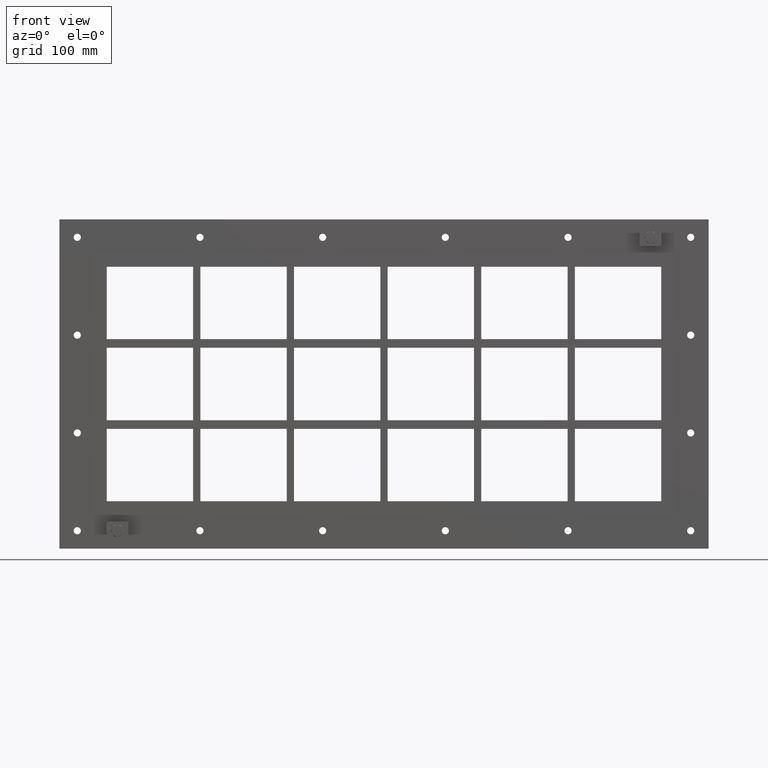
[diagram: clean part render]
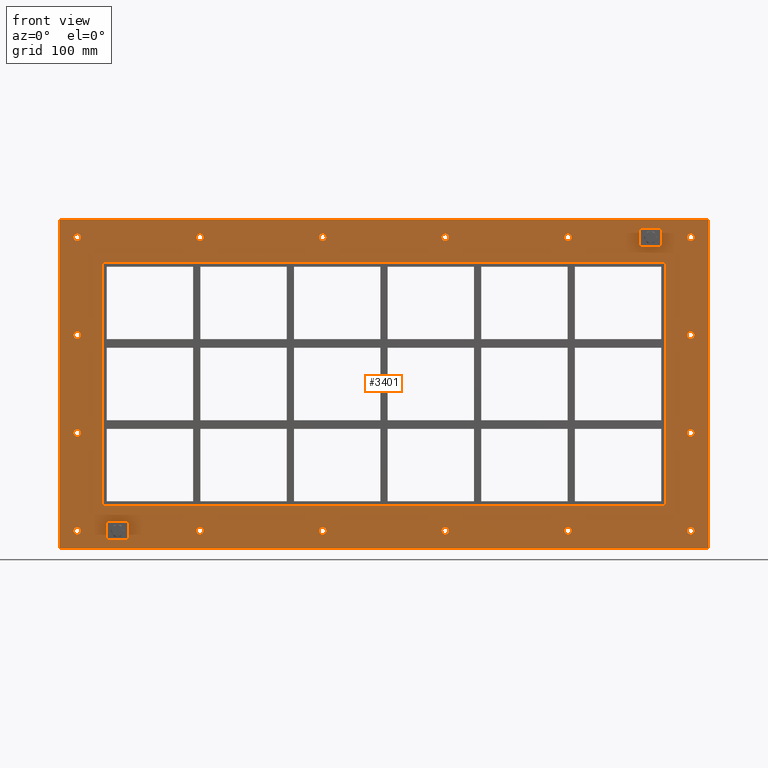
[diagram: same view with one face highlighted and labeled with its STEP entity id]
A machine part, front view. The second image highlights one B-rep face of the part: STEP entity #3401.
In plain terms, the highlighted planar face has unit normal (0, 1, 0).
Its self-contained STEP definition (entity closure, byte-faithful):
#84=CARTESIAN_POINT('',(-422.5,0.0,-204.5));
#85=VERTEX_POINT('',#84);
#86=CARTESIAN_POINT('',(-427.5,0.0,-204.5));
#87=DIRECTION('',(0.0,1.0,0.0));
#88=DIRECTION('',(1.0,0.0,0.0));
#89=AXIS2_PLACEMENT_3D('',#86,#87,#88);
#90=CIRCLE('',#89,5.0);
#91=EDGE_CURVE('',#85,#85,#90,.T.);
#112=CARTESIAN_POINT('',(432.5,0.0,-68.19999999999996));
#113=VERTEX_POINT('',#112);
#114=CARTESIAN_POINT('',(427.5,0.0,-68.19999999999996));
#115=DIRECTION('',(0.0,1.0,0.0));
#116=DIRECTION('',(1.0,0.0,0.0));
#117=AXIS2_PLACEMENT_3D('',#114,#115,#116);
#118=CIRCLE('',#117,5.0);
#119=EDGE_CURVE('',#113,#113,#118,.T.);
#140=CARTESIAN_POINT('',(-422.5,0.0,-68.19999999999996));
#141=VERTEX_POINT('',#140);
#142=CARTESIAN_POINT('',(-427.5,0.0,-68.19999999999996));
#143=DIRECTION('',(0.0,1.0,0.0));
#144=DIRECTION('',(1.0,0.0,0.0));
#145=AXIS2_PLACEMENT_3D('',#142,#143,#144);
#146=CIRCLE('',#145,5.0);
#147=EDGE_CURVE('',#141,#141,#146,.T.);
#168=CARTESIAN_POINT('',(432.5,0.0,68.100000000000051));
#169=VERTEX_POINT('',#168);
#170=CARTESIAN_POINT('',(427.5,0.0,68.100000000000051));
#171=DIRECTION('',(0.0,1.0,0.0));
#172=DIRECTION('',(1.0,0.0,0.0));
#173=AXIS2_PLACEMENT_3D('',#170,#171,#172);
#174=CIRCLE('',#173,5.0);
#175=EDGE_CURVE('',#169,#169,#174,.T.);
#196=CARTESIAN_POINT('',(-422.5,0.0,68.100000000000051));
#197=VERTEX_POINT('',#196);
#198=CARTESIAN_POINT('',(-427.5,0.0,68.100000000000051));
#199=DIRECTION('',(0.0,1.0,0.0));
#200=DIRECTION('',(1.0,0.0,0.0));
#201=AXIS2_PLACEMENT_3D('',#198,#199,#200);
#202=CIRCLE('',#201,5.0);
#203=EDGE_CURVE('',#197,#197,#202,.T.);
#224=CARTESIAN_POINT('',(-251.50000000000006,0.0,204.40000000000009));
#225=VERTEX_POINT('',#224);
#226=CARTESIAN_POINT('',(-256.50000000000006,0.0,204.40000000000009));
#227=DIRECTION('',(0.0,1.0,0.0));
#228=DIRECTION('',(1.0,0.0,0.0));
#229=AXIS2_PLACEMENT_3D('',#226,#227,#228);
#230=CIRCLE('',#229,5.0);
#231=EDGE_CURVE('',#225,#225,#230,.T.);
#252=CARTESIAN_POINT('',(-251.50000000000006,0.0,-204.50000000000003));
#253=VERTEX_POINT('',#252);
#254=CARTESIAN_POINT('',(-256.50000000000006,0.0,-204.50000000000003));
#255=DIRECTION('',(0.0,1.0,0.0));
#256=DIRECTION('',(1.0,0.0,0.0));
#257=AXIS2_PLACEMENT_3D('',#254,#255,#256);
#258=CIRCLE('',#257,5.0);
#259=EDGE_CURVE('',#253,#253,#258,.T.);
#280=CARTESIAN_POINT('',(-80.500000000000043,0.0,204.40000000000009));
#281=VERTEX_POINT('',#280);
#282=CARTESIAN_POINT('',(-85.500000000000043,0.0,204.40000000000009));
#283=DIRECTION('',(0.0,1.0,0.0));
#284=DIRECTION('',(1.0,0.0,0.0));
#285=AXIS2_PLACEMENT_3D('',#282,#283,#284);
#286=CIRCLE('',#285,5.0);
#287=EDGE_CURVE('',#281,#281,#286,.T.);
#308=CARTESIAN_POINT('',(-80.500000000000043,0.0,-204.50000000000003));
#309=VERTEX_POINT('',#308);
#310=CARTESIAN_POINT('',(-85.500000000000043,0.0,-204.50000000000003));
#311=DIRECTION('',(0.0,1.0,0.0));
#312=DIRECTION('',(1.0,0.0,0.0));
#313=AXIS2_PLACEMENT_3D('',#310,#311,#312);
#314=CIRCLE('',#313,5.0);
#315=EDGE_CURVE('',#309,#309,#314,.T.);
#336=CARTESIAN_POINT('',(90.499999999999972,0.0,204.40000000000009));
#337=VERTEX_POINT('',#336);
#338=CARTESIAN_POINT('',(85.499999999999972,0.0,204.40000000000009));
#339=DIRECTION('',(0.0,1.0,0.0));
#340=DIRECTION('',(1.0,0.0,0.0));
#341=AXIS2_PLACEMENT_3D('',#338,#339,#340);
#342=CIRCLE('',#341,5.0);
#343=EDGE_CURVE('',#337,#337,#342,.T.);
#364=CARTESIAN_POINT('',(90.499999999999972,0.0,-204.50000000000003));
#365=VERTEX_POINT('',#364);
#366=CARTESIAN_POINT('',(85.499999999999972,0.0,-204.50000000000003));
#367=DIRECTION('',(0.0,1.0,0.0));
#368=DIRECTION('',(1.0,0.0,0.0));
#369=AXIS2_PLACEMENT_3D('',#366,#367,#368);
#370=CIRCLE('',#369,5.0);
#371=EDGE_CURVE('',#365,#365,#370,.T.);
#392=CARTESIAN_POINT('',(261.5,0.0,204.40000000000009));
#393=VERTEX_POINT('',#392);
#394=CARTESIAN_POINT('',(256.5,0.0,204.40000000000009));
#395=DIRECTION('',(0.0,1.0,0.0));
#396=DIRECTION('',(1.0,0.0,0.0));
#397=AXIS2_PLACEMENT_3D('',#394,#395,#396);
#398=CIRCLE('',#397,5.0);
#399=EDGE_CURVE('',#393,#393,#398,.T.);
#420=CARTESIAN_POINT('',(261.5,0.0,-204.50000000000003));
#421=VERTEX_POINT('',#420);
#422=CARTESIAN_POINT('',(256.5,0.0,-204.50000000000003));
#423=DIRECTION('',(0.0,1.0,0.0));
#424=DIRECTION('',(1.0,0.0,0.0));
#425=AXIS2_PLACEMENT_3D('',#422,#423,#424);
#426=CIRCLE('',#425,5.0);
#427=EDGE_CURVE('',#421,#421,#426,.T.);
#448=CARTESIAN_POINT('',(432.5,0.0,-204.50000000000003));
#449=VERTEX_POINT('',#448);
#450=CARTESIAN_POINT('',(427.5,0.0,-204.50000000000003));
#451=DIRECTION('',(0.0,1.0,0.0));
#452=DIRECTION('',(1.0,0.0,0.0));
#453=AXIS2_PLACEMENT_3D('',#450,#451,#452);
#454=CIRCLE('',#453,5.0);
#455=EDGE_CURVE('',#449,#449,#454,.T.);
#476=CARTESIAN_POINT('',(-422.5,0.0,204.40000000000009));
#477=VERTEX_POINT('',#476);
#478=CARTESIAN_POINT('',(-427.5,0.0,204.40000000000009));
#479=DIRECTION('',(0.0,1.0,0.0));
#480=DIRECTION('',(1.0,0.0,0.0));
#481=AXIS2_PLACEMENT_3D('',#478,#479,#480);
#482=CIRCLE('',#481,5.0);
#483=EDGE_CURVE('',#477,#477,#482,.T.);
#504=CARTESIAN_POINT('',(432.5,0.0,204.40000000000009));
#505=VERTEX_POINT('',#504);
#506=CARTESIAN_POINT('',(427.5,0.0,204.40000000000009));
#507=DIRECTION('',(0.0,1.0,0.0));
#508=DIRECTION('',(1.0,0.0,0.0));
#509=AXIS2_PLACEMENT_3D('',#506,#507,#508);
#510=CIRCLE('',#509,5.0);
#511=EDGE_CURVE('',#505,#505,#510,.T.);
#3244=CARTESIAN_POINT('',(0.0,0.0,0.0));
#3245=DIRECTION('',(0.0,1.0,0.0));
#3246=DIRECTION('',(0.0,0.0,1.0));
#3247=AXIS2_PLACEMENT_3D('',#3244,#3245,#3246);
#3248=PLANE('',#3247);
#3249=CARTESIAN_POINT('',(-452.49999999999994,0.0,229.50000000000003));
#3250=VERTEX_POINT('',#3249);
#3251=CARTESIAN_POINT('',(452.49999999999994,0.0,229.50000000000003));
#3252=VERTEX_POINT('',#3251);
#3253=CARTESIAN_POINT('',(-452.49999999999994,0.0,229.50000000000003));
#3254=DIRECTION('',(1.0,0.0,0.0));
#3255=VECTOR('',#3254,904.99999999999989);
#3256=LINE('',#3253,#3255);
#3257=EDGE_CURVE('',#3250,#3252,#3256,.T.);
#3258=ORIENTED_EDGE('',*,*,#3257,.F.);
#3259=CARTESIAN_POINT('',(-452.49999999999994,0.0,-229.50000000000003));
#3260=VERTEX_POINT('',#3259);
#3261=CARTESIAN_POINT('',(-452.49999999999994,0.0,-229.50000000000003));
#3262=DIRECTION('',(0.0,0.0,1.0));
#3263=VECTOR('',#3262,459.00000000000006);
#3264=LINE('',#3261,#3263);
#3265=EDGE_CURVE('',#3260,#3250,#3264,.T.);
#3266=ORIENTED_EDGE('',*,*,#3265,.F.);
#3267=CARTESIAN_POINT('',(452.49999999999994,0.0,-229.50000000000003));
#3268=VERTEX_POINT('',#3267);
#3269=CARTESIAN_POINT('',(452.49999999999994,0.0,-229.50000000000003));
#3270=DIRECTION('',(-1.0,0.0,0.0));
#3271=VECTOR('',#3270,904.99999999999989);
#3272=LINE('',#3269,#3271);
#3273=EDGE_CURVE('',#3268,#3260,#3272,.T.);
#3274=ORIENTED_EDGE('',*,*,#3273,.F.);
#3275=CARTESIAN_POINT('',(452.49999999999994,0.0,229.50000000000003));
#3276=DIRECTION('',(0.0,0.0,-1.0));
#3277=VECTOR('',#3276,459.00000000000006);
#3278=LINE('',#3275,#3277);
#3279=EDGE_CURVE('',#3252,#3268,#3278,.T.);
#3280=ORIENTED_EDGE('',*,*,#3279,.F.);
#3281=EDGE_LOOP('',(#3258,#3266,#3274,#3280));
#3282=FACE_OUTER_BOUND('',#3281,.T.);
#3283=ORIENTED_EDGE('',*,*,#91,.T.);
#3284=EDGE_LOOP('',(#3283));
#3285=FACE_BOUND('',#3284,.T.);
#3286=ORIENTED_EDGE('',*,*,#119,.T.);
#3287=EDGE_LOOP('',(#3286));
#3288=FACE_BOUND('',#3287,.T.);
#3289=ORIENTED_EDGE('',*,*,#147,.T.);
#3290=EDGE_LOOP('',(#3289));
#3291=FACE_BOUND('',#3290,.T.);
#3292=ORIENTED_EDGE('',*,*,#175,.T.);
#3293=EDGE_LOOP('',(#3292));
#3294=FACE_BOUND('',#3293,.T.);
#3295=ORIENTED_EDGE('',*,*,#203,.T.);
#3296=EDGE_LOOP('',(#3295));
#3297=FACE_BOUND('',#3296,.T.);
#3298=ORIENTED_EDGE('',*,*,#231,.T.);
#3299=EDGE_LOOP('',(#3298));
#3300=FACE_BOUND('',#3299,.T.);
#3301=ORIENTED_EDGE('',*,*,#259,.T.);
#3302=EDGE_LOOP('',(#3301));
#3303=FACE_BOUND('',#3302,.T.);
#3304=ORIENTED_EDGE('',*,*,#287,.T.);
#3305=EDGE_LOOP('',(#3304));
#3306=FACE_BOUND('',#3305,.T.);
#3307=ORIENTED_EDGE('',*,*,#315,.T.);
#3308=EDGE_LOOP('',(#3307));
#3309=FACE_BOUND('',#3308,.T.);
#3310=ORIENTED_EDGE('',*,*,#343,.T.);
#3311=EDGE_LOOP('',(#3310));
#3312=FACE_BOUND('',#3311,.T.);
#3313=ORIENTED_EDGE('',*,*,#371,.T.);
#3314=EDGE_LOOP('',(#3313));
#3315=FACE_BOUND('',#3314,.T.);
#3316=ORIENTED_EDGE('',*,*,#399,.T.);
#3317=EDGE_LOOP('',(#3316));
#3318=FACE_BOUND('',#3317,.T.);
#3319=ORIENTED_EDGE('',*,*,#427,.T.);
#3320=EDGE_LOOP('',(#3319));
#3321=FACE_BOUND('',#3320,.T.);
#3322=ORIENTED_EDGE('',*,*,#455,.T.);
#3323=EDGE_LOOP('',(#3322));
#3324=FACE_BOUND('',#3323,.T.);
#3325=ORIENTED_EDGE('',*,*,#483,.T.);
#3326=EDGE_LOOP('',(#3325));
#3327=FACE_BOUND('',#3326,.T.);
#3328=ORIENTED_EDGE('',*,*,#511,.T.);
#3329=EDGE_LOOP('',(#3328));
#3330=FACE_BOUND('',#3329,.T.);
#3331=CARTESIAN_POINT('',(-390.5,0.0,169.50000000000003));
#3332=VERTEX_POINT('',#3331);
#3333=CARTESIAN_POINT('',(-392.5,0.0,167.5));
#3334=VERTEX_POINT('',#3333);
#3335=CARTESIAN_POINT('',(-390.5,0.0,167.5));
#3336=DIRECTION('',(0.0,-1.0,0.0));
#3337=DIRECTION('',(-0.707106781186548,0.0,0.707106781186548));
#3338=AXIS2_PLACEMENT_3D('',#3335,#3336,#3337);
#3339=CIRCLE('',#3338,2.0);
#3340=EDGE_CURVE('',#3332,#3334,#3339,.T.);
#3341=ORIENTED_EDGE('',*,*,#3340,.F.);
#3342=CARTESIAN_POINT('',(390.50000000000006,0.0,169.50000000000003));
#3343=VERTEX_POINT('',#3342);
#3344=CARTESIAN_POINT('',(390.5,0.0,169.50000000000003));
#3345=DIRECTION('',(-1.0,0.0,0.0));
#3346=VECTOR('',#3345,781.0);
#3347=LINE('',#3344,#3346);
#3348=EDGE_CURVE('',#3343,#3332,#3347,.T.);
#3349=ORIENTED_EDGE('',*,*,#3348,.F.);
#3350=CARTESIAN_POINT('',(392.50000000000006,0.0,167.50000000000003));
#3351=VERTEX_POINT('',#3350);
#3352=CARTESIAN_POINT('',(390.50000000000006,0.0,167.50000000000003));
#3353=DIRECTION('',(0.0,-1.0,0.0));
#3354=DIRECTION('',(0.70710678118656,0.0,0.707106781186535));
#3355=AXIS2_PLACEMENT_3D('',#3352,#3353,#3354);
#3356=CIRCLE('',#3355,2.0);
#3357=EDGE_CURVE('',#3351,#3343,#3356,.T.);
#3358=ORIENTED_EDGE('',*,*,#3357,.F.);
#3359=CARTESIAN_POINT('',(392.50000000000006,0.0,-167.5));
#3360=VERTEX_POINT('',#3359);
#3361=CARTESIAN_POINT('',(392.50000000000006,0.0,-167.5));
#3362=DIRECTION('',(0.0,0.0,1.0));
#3363=VECTOR('',#3362,335.00000000000006);
#3364=LINE('',#3361,#3363);
#3365=EDGE_CURVE('',#3360,#3351,#3364,.T.);
#3366=ORIENTED_EDGE('',*,*,#3365,.F.);
#3367=CARTESIAN_POINT('',(390.50000000000011,0.0,-169.50000000000003));
#3368=VERTEX_POINT('',#3367);
#3369=CARTESIAN_POINT('',(390.50000000000011,0.0,-167.5));
#3370=DIRECTION('',(0.0,-1.0,0.0));
#3371=DIRECTION('',(0.707106781186522,0.0,-0.707106781186573));
#3372=AXIS2_PLACEMENT_3D('',#3369,#3370,#3371);
#3373=CIRCLE('',#3372,2.0);
#3374=EDGE_CURVE('',#3368,#3360,#3373,.T.);
#3375=ORIENTED_EDGE('',*,*,#3374,.F.);
#3376=CARTESIAN_POINT('',(-390.5,0.0,-169.50000000000003));
#3377=VERTEX_POINT('',#3376);
#3378=CARTESIAN_POINT('',(-390.5,0.0,-169.50000000000003));
#3379=DIRECTION('',(1.0,0.0,0.0));
#3380=VECTOR('',#3379,781.00000000000011);
#3381=LINE('',#3378,#3380);
#3382=EDGE_CURVE('',#3377,#3368,#3381,.T.);
#3383=ORIENTED_EDGE('',*,*,#3382,.F.);
#3384=CARTESIAN_POINT('',(-392.5,0.0,-167.5));
#3385=VERTEX_POINT('',#3384);
#3386=CARTESIAN_POINT('',(-390.5,0.0,-167.5));
#3387=DIRECTION('',(0.0,-1.0,0.0));
#3388=DIRECTION('',(-0.707106781186548,0.0,-0.707106781186548));
#3389=AXIS2_PLACEMENT_3D('',#3386,#3387,#3388);
#3390=CIRCLE('',#3389,2.0);
#3391=EDGE_CURVE('',#3385,#3377,#3390,.T.);
#3392=ORIENTED_EDGE('',*,*,#3391,.F.);
#3393=CARTESIAN_POINT('',(-392.5,0.0,167.5));
#3394=DIRECTION('',(0.0,0.0,-1.0));
#3395=VECTOR('',#3394,335.0);
#3396=LINE('',#3393,#3395);
#3397=EDGE_CURVE('',#3334,#3385,#3396,.T.);
#3398=ORIENTED_EDGE('',*,*,#3397,.F.);
#3399=EDGE_LOOP('',(#3341,#3349,#3358,#3366,#3375,#3383,#3392,#3398));
#3400=FACE_BOUND('',#3399,.T.);
#3401=ADVANCED_FACE('',(#3282,#3285,#3288,#3291,#3294,#3297,#3300,#3303,#3306,#3309,#3312,#3315,#3318,#3321,#3324,#3327,#3330,#3400),#3248,.F.);